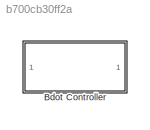
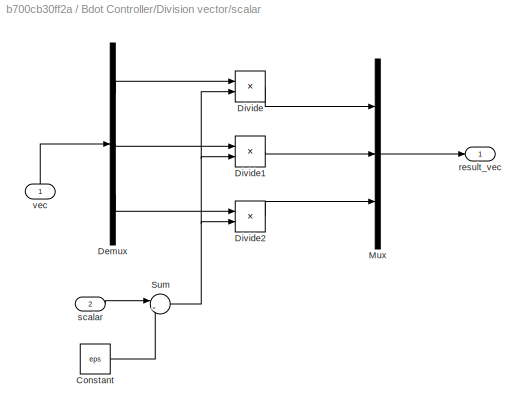
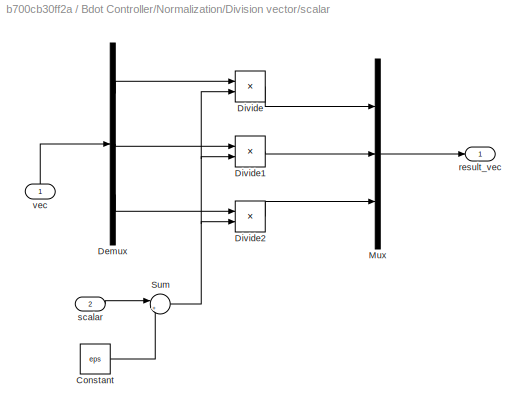
MODEL slx_b700cb30ff2a
KIND library
CONFIG AbsTol = auto
CONFIG EnableMultiTasking = on
CONFIG FixedStep = auto
CONFIG MaxStep = auto
CONFIG MinStep = auto
CONFIG RelTol = 1e-3
CONFIG SampleTimeConstraint = Unconstrained
CONFIG Solver = ode45
CONFIG SolverName = ode45
CONFIG StartTime = 0.0
CONFIG StopTime = 10.0
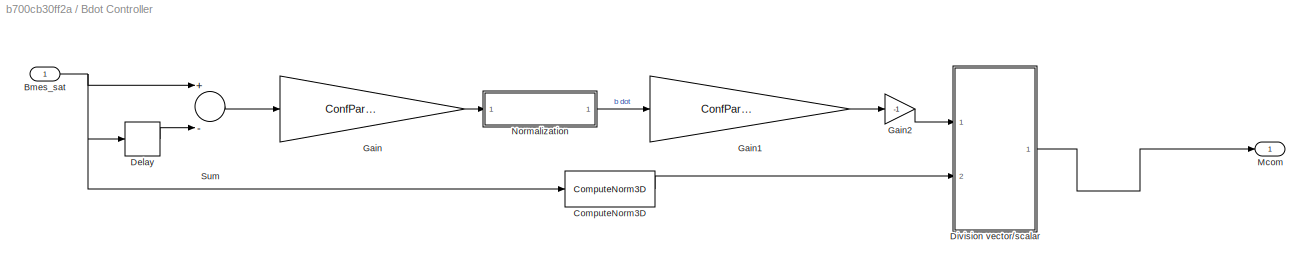
BLOCK [SubSystem] Bdot Controller
  Ports = [1, 1]
  RequestExecContextInheritance = off
BLOCK [Inport] Bdot Controller/Bmes_sat
  IconDisplay = Port number
BLOCK [Reference] Bdot Controller/ComputeNorm3D  REF=ComputeNorm3D/ComputeNorm3D
  Ports = [1, 1]
  SourceBlock = ComputeNorm3D/ComputeNorm3D
  SourceType = SubSystem
BLOCK [Delay] Bdot Controller/Delay
  DelayLength = 1
  InitialCondition = [0;0;0]
  InputPortMap = u0
  Ports = [1, 1]
  SampleTime = 1/ConfParam.confES.frequency
BLOCK [SubSystem] Bdot Controller/Division vector//scalar
  Ports = [2, 1]
  RequestExecContextInheritance = off
BLOCK [Constant] Bdot Controller/Division vector//scalar/Constant
  SampleTime = 1/ConfParam.confES.frequency
  Value = eps
BLOCK [Demux] Bdot Controller/Division vector//scalar/Demux
  DisplayOption = bar
  Outputs = 3
  Ports = [1, 3]
BLOCK [Product] Bdot Controller/Division vector//scalar/Divide
  InputSameDT = off
  Inputs = */
  OutDataTypeStr = Inherit: Inherit via internal rule
  Ports = [2, 1]
  RndMeth = Floor
  SaturateOnIntegerOverflow = off
BLOCK [Product] Bdot Controller/Division vector//scalar/Divide1
  InputSameDT = off
  Inputs = */
  OutDataTypeStr = Inherit: Inherit via internal rule
  Ports = [2, 1]
  RndMeth = Floor
  SaturateOnIntegerOverflow = off
BLOCK [Product] Bdot Controller/Division vector//scalar/Divide2
  InputSameDT = off
  Inputs = */
  OutDataTypeStr = Inherit: Inherit via internal rule
  Ports = [2, 1]
  RndMeth = Floor
  SaturateOnIntegerOverflow = off
BLOCK [Mux] Bdot Controller/Division vector//scalar/Mux
  DisplayOption = bar
  Inputs = 3
  Ports = [3, 1]
BLOCK [Sum] Bdot Controller/Division vector//scalar/Sum
  IconShape = round
  InputSameDT = off
  Inputs = |++
  OutDataTypeStr = Inherit: Inherit via internal rule
  Ports = [2, 1]
  SaturateOnIntegerOverflow = off
BLOCK [Outport] Bdot Controller/Division vector//scalar/result_vec
  IconDisplay = Port number
BLOCK [Inport] Bdot Controller/Division vector//scalar/scalar
  IconDisplay = Port number
  Port = 2
BLOCK [Inport] Bdot Controller/Division vector//scalar/vec
  IconDisplay = Port number
BLOCK [Gain] Bdot Controller/Gain
  Gain = ConfParam.confES.frequency
  OutDataTypeStr = Inherit: Inherit via internal rule
  ParamDataTypeStr = Inherit: Inherit via internal rule
  SaturateOnIntegerOverflow = off
BLOCK [Gain] Bdot Controller/Gain1
  Gain = ConfParam.confBdotController.k
  OutDataTypeStr = Inherit: Inherit via internal rule
  ParamDataTypeStr = Inherit: Inherit via internal rule
  SaturateOnIntegerOverflow = off
BLOCK [Gain] Bdot Controller/Gain2
  Gain = -1
  OutDataTypeStr = Inherit: Inherit via internal rule
  ParamDataTypeStr = Inherit: Inherit via internal rule
  SaturateOnIntegerOverflow = off
BLOCK [Outport] Bdot Controller/Mcom
  IconDisplay = Port number
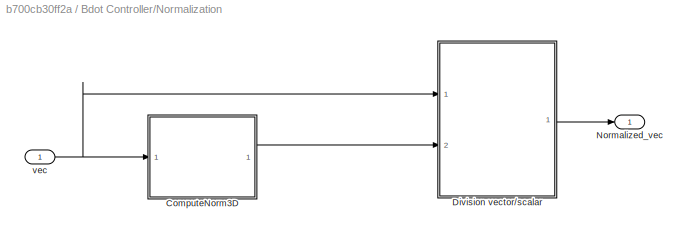
BLOCK [SubSystem] Bdot Controller/Normalization
  Ports = [1, 1]
  RequestExecContextInheritance = off
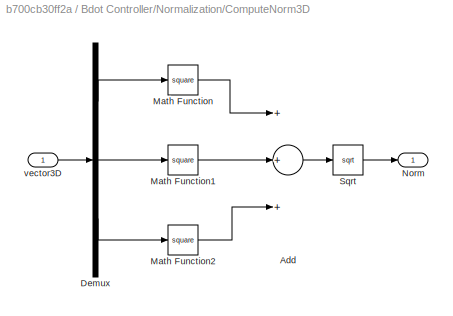
BLOCK [SubSystem] Bdot Controller/Normalization/ComputeNorm3D
  Ports = [1, 1]
  RequestExecContextInheritance = off
BLOCK [Sum] Bdot Controller/Normalization/ComputeNorm3D/Add
  InputSameDT = off
  Inputs = +++
  OutDataTypeStr = Inherit: Inherit via internal rule
  Ports = [3, 1]
  SaturateOnIntegerOverflow = off
BLOCK [Demux] Bdot Controller/Normalization/ComputeNorm3D/Demux
  DisplayOption = bar
  Outputs = 3
  Ports = [1, 3]
BLOCK [Math] Bdot Controller/Normalization/ComputeNorm3D/Math Function
  Operator = square
  Ports = [1, 1]
BLOCK [Math] Bdot Controller/Normalization/ComputeNorm3D/Math Function1
  Operator = square
  Ports = [1, 1]
BLOCK [Math] Bdot Controller/Normalization/ComputeNorm3D/Math Function2
  Operator = square
  Ports = [1, 1]
BLOCK [Outport] Bdot Controller/Normalization/ComputeNorm3D/Norm
  IconDisplay = Port number
BLOCK [Sqrt] Bdot Controller/Normalization/ComputeNorm3D/Sqrt
BLOCK [Inport] Bdot Controller/Normalization/ComputeNorm3D/vector3D
  IconDisplay = Port number
BLOCK [SubSystem] Bdot Controller/Normalization/Division vector//scalar
  Ports = [2, 1]
  RequestExecContextInheritance = off
BLOCK [Constant] Bdot Controller/Normalization/Division vector//scalar/Constant
  SampleTime = 1/ConfParam.confES.frequency
  Value = eps
BLOCK [Demux] Bdot Controller/Normalization/Division vector//scalar/Demux
  DisplayOption = bar
  Outputs = 3
  Ports = [1, 3]
BLOCK [Product] Bdot Controller/Normalization/Division vector//scalar/Divide
  InputSameDT = off
  Inputs = */
  OutDataTypeStr = Inherit: Inherit via internal rule
  Ports = [2, 1]
  RndMeth = Floor
  SaturateOnIntegerOverflow = off
BLOCK [Product] Bdot Controller/Normalization/Division vector//scalar/Divide1
  InputSameDT = off
  Inputs = */
  OutDataTypeStr = Inherit: Inherit via internal rule
  Ports = [2, 1]
  RndMeth = Floor
  SaturateOnIntegerOverflow = off
BLOCK [Product] Bdot Controller/Normalization/Division vector//scalar/Divide2
  InputSameDT = off
  Inputs = */
  OutDataTypeStr = Inherit: Inherit via internal rule
  Ports = [2, 1]
  RndMeth = Floor
  SaturateOnIntegerOverflow = off
BLOCK [Mux] Bdot Controller/Normalization/Division vector//scalar/Mux
  DisplayOption = bar
  Inputs = 3
  Ports = [3, 1]
BLOCK [Sum] Bdot Controller/Normalization/Division vector//scalar/Sum
  IconShape = round
  InputSameDT = off
  Inputs = |++
  OutDataTypeStr = Inherit: Inherit via internal rule
  Ports = [2, 1]
  SaturateOnIntegerOverflow = off
BLOCK [Outport] Bdot Controller/Normalization/Division vector//scalar/result_vec
  IconDisplay = Port number
BLOCK [Inport] Bdot Controller/Normalization/Division vector//scalar/scalar
  IconDisplay = Port number
  Port = 2
BLOCK [Inport] Bdot Controller/Normalization/Division vector//scalar/vec
  IconDisplay = Port number
BLOCK [Outport] Bdot Controller/Normalization/Normalized_vec
  IconDisplay = Port number
BLOCK [Inport] Bdot Controller/Normalization/vec
  IconDisplay = Port number
BLOCK [Sum] Bdot Controller/Sum
  InputSameDT = off
  Inputs = +-
  OutDataTypeStr = Inherit: Inherit via internal rule
  Ports = [2, 1]
  SaturateOnIntegerOverflow = off
NET Bdot Controller/Bmes_sat:1 -> Bdot Controller/ComputeNorm3D:1, Bdot Controller/Delay:1, Bdot Controller/Sum:1
LINE Bdot Controller/ComputeNorm3D:1 -> Bdot Controller/Division vector//scalar:2
LINE Bdot Controller/Delay:1 -> Bdot Controller/Sum:2
LINE Bdot Controller/Division vector//scalar/Constant:1 -> Bdot Controller/Division vector//scalar/Sum:2
LINE Bdot Controller/Division vector//scalar/Demux:1 -> Bdot Controller/Division vector//scalar/Divide:1
LINE Bdot Controller/Division vector//scalar/Demux:2 -> Bdot Controller/Division vector//scalar/Divide1:1
LINE Bdot Controller/Division vector//scalar/Demux:3 -> Bdot Controller/Division vector//scalar/Divide2:1
LINE Bdot Controller/Division vector//scalar/Divide1:1 -> Bdot Controller/Division vector//scalar/Mux:2
LINE Bdot Controller/Division vector//scalar/Divide2:1 -> Bdot Controller/Division vector//scalar/Mux:3
LINE Bdot Controller/Division vector//scalar/Divide:1 -> Bdot Controller/Division vector//scalar/Mux:1
LINE Bdot Controller/Division vector//scalar/Mux:1 -> Bdot Controller/Division vector//scalar/result_vec:1
NET Bdot Controller/Division vector//scalar/Sum:1 -> Bdot Controller/Division vector//scalar/Divide1:2, Bdot Controller/Division vector//scalar/Divide2:2, Bdot Controller/Division vector//scalar/Divide:2
LINE Bdot Controller/Division vector//scalar/scalar:1 -> Bdot Controller/Division vector//scalar/Sum:1
LINE Bdot Controller/Division vector//scalar/vec:1 -> Bdot Controller/Division vector//scalar/Demux:1
LINE Bdot Controller/Division vector//scalar:1 -> Bdot Controller/Mcom:1
LINE Bdot Controller/Gain1:1 -> Bdot Controller/Gain2:1
LINE Bdot Controller/Gain2:1 -> Bdot Controller/Division vector//scalar:1
LINE Bdot Controller/Gain:1 -> Bdot Controller/Normalization:1
LINE Bdot Controller/Normalization/ComputeNorm3D/Add:1 -> Bdot Controller/Normalization/ComputeNorm3D/Sqrt:1
LINE Bdot Controller/Normalization/ComputeNorm3D/Demux:1 -> Bdot Controller/Normalization/ComputeNorm3D/Math Function:1
LINE Bdot Controller/Normalization/ComputeNorm3D/Demux:2 -> Bdot Controller/Normalization/ComputeNorm3D/Math Function1:1
LINE Bdot Controller/Normalization/ComputeNorm3D/Demux:3 -> Bdot Controller/Normalization/ComputeNorm3D/Math Function2:1
LINE Bdot Controller/Normalization/ComputeNorm3D/Math Function1:1 -> Bdot Controller/Normalization/ComputeNorm3D/Add:2
LINE Bdot Controller/Normalization/ComputeNorm3D/Math Function2:1 -> Bdot Controller/Normalization/ComputeNorm3D/Add:3
LINE Bdot Controller/Normalization/ComputeNorm3D/Math Function:1 -> Bdot Controller/Normalization/ComputeNorm3D/Add:1
LINE Bdot Controller/Normalization/ComputeNorm3D/Sqrt:1 -> Bdot Controller/Normalization/ComputeNorm3D/Norm:1
LINE Bdot Controller/Normalization/ComputeNorm3D/vector3D:1 -> Bdot Controller/Normalization/ComputeNorm3D/Demux:1
LINE Bdot Controller/Normalization/ComputeNorm3D:1 -> Bdot Controller/Normalization/Division vector//scalar:2
LINE Bdot Controller/Normalization/Division vector//scalar/Constant:1 -> Bdot Controller/Normalization/Division vector//scalar/Sum:2
LINE Bdot Controller/Normalization/Division vector//scalar/Demux:1 -> Bdot Controller/Normalization/Division vector//scalar/Divide:1
LINE Bdot Controller/Normalization/Division vector//scalar/Demux:2 -> Bdot Controller/Normalization/Division vector//scalar/Divide1:1
LINE Bdot Controller/Normalization/Division vector//scalar/Demux:3 -> Bdot Controller/Normalization/Division vector//scalar/Divide2:1
LINE Bdot Controller/Normalization/Division vector//scalar/Divide1:1 -> Bdot Controller/Normalization/Division vector//scalar/Mux:2
LINE Bdot Controller/Normalization/Division vector//scalar/Divide2:1 -> Bdot Controller/Normalization/Division vector//scalar/Mux:3
LINE Bdot Controller/Normalization/Division vector//scalar/Divide:1 -> Bdot Controller/Normalization/Division vector//scalar/Mux:1
LINE Bdot Controller/Normalization/Division vector//scalar/Mux:1 -> Bdot Controller/Normalization/Division vector//scalar/result_vec:1
NET Bdot Controller/Normalization/Division vector//scalar/Sum:1 -> Bdot Controller/Normalization/Division vector//scalar/Divide1:2, Bdot Controller/Normalization/Division vector//scalar/Divide2:2, Bdot Controller/Normalization/Division vector//scalar/Divide:2
LINE Bdot Controller/Normalization/Division vector//scalar/scalar:1 -> Bdot Controller/Normalization/Division vector//scalar/Sum:1
LINE Bdot Controller/Normalization/Division vector//scalar/vec:1 -> Bdot Controller/Normalization/Division vector//scalar/Demux:1
LINE Bdot Controller/Normalization/Division vector//scalar:1 -> Bdot Controller/Normalization/Normalized_vec:1
NET Bdot Controller/Normalization/vec:1 -> Bdot Controller/Normalization/ComputeNorm3D:1, Bdot Controller/Normalization/Division vector//scalar:1
LINE Bdot Controller/Normalization:1 -> Bdot Controller/Gain1:1
LINE Bdot Controller/Sum:1 -> Bdot Controller/Gain:1
note: NET lines group one-source signal fan-out (src -> all destinations, sorted); 1:1 wires keep LINE
